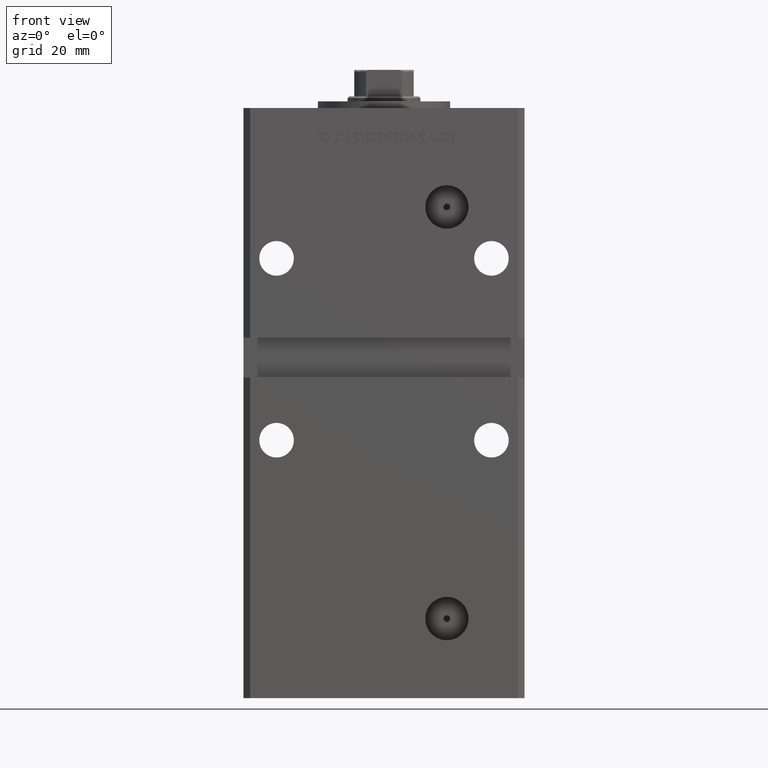
[diagram: clean part render]
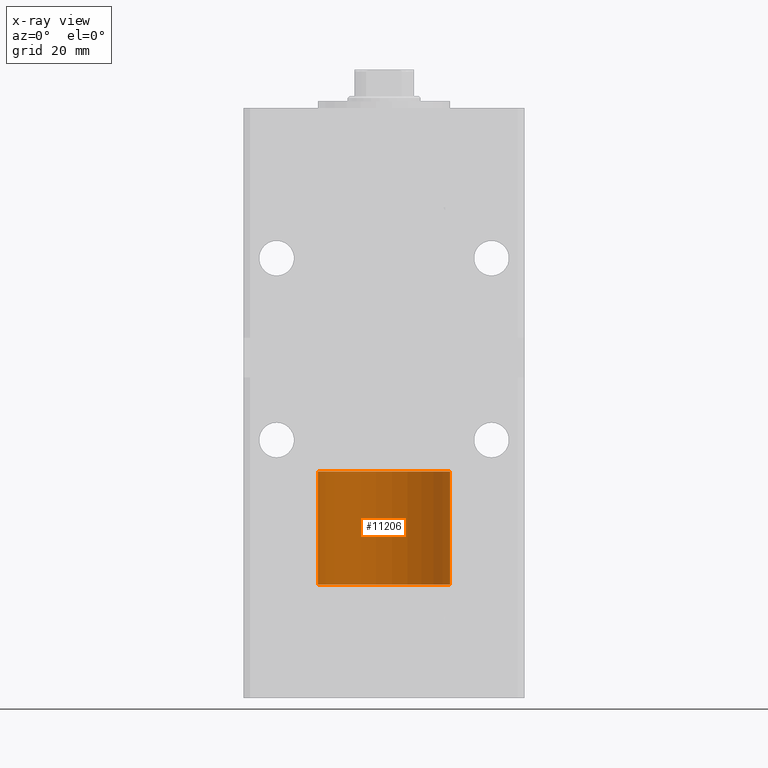
[diagram: x-ray — body ghosted, one internal face saturated and labeled with its STEP entity id]
A machine part, front view, then the same camera in x-ray: the body is ghosted and one INTERNAL B-rep face — a face not visible from any outside direction — is saturated and labeled: STEP entity #11206.
In plain terms, the highlighted cylindrical surface (partial cylindrical patch) has radius 20 mm, axis along (-0, -0, -1).
Its self-contained STEP definition (entity closure, byte-faithful):
#1515 = CIRCLE ( 'NONE', #14443, 20.00000000000000000 ) ;
#2093 = CARTESIAN_POINT ( 'NONE',  ( -20.00000000000000000, 0.000000000000000000, 34.25000000000000000 ) ) ;
#6530 = EDGE_CURVE ( 'NONE', #23949, #49530, #33173, .T. ) ;
#7867 = VECTOR ( 'NONE', #22512, 1000.000000000000000 ) ;
#8270 = DIRECTION ( 'NONE',  ( 1.000000000000000000, 0.000000000000000000, 0.000000000000000000 ) ) ;
#11134 = VECTOR ( 'NONE', #51748, 1000.000000000000000 ) ;
#11182 = ORIENTED_EDGE ( 'NONE', *, *, #26854, .F. ) ;
#11206 = ADVANCED_FACE ( 'NONE', ( #12987 ), #29379, .T. ) ;
#11772 = CARTESIAN_POINT ( 'NONE',  ( 0.000000000000000000, 0.000000000000000000, 34.25000000000000000 ) ) ;
#12987 = FACE_OUTER_BOUND ( 'NONE', #25532, .T. ) ;
#13244 = DIRECTION ( 'NONE',  ( -0.000000000000000000, -0.000000000000000000, -1.000000000000000000 ) ) ;
#14443 = AXIS2_PLACEMENT_3D ( 'NONE', #11772, #40812, #8270 ) ;
#15257 = AXIS2_PLACEMENT_3D ( 'NONE', #25348, #13244, #41761 ) ;
#15948 = EDGE_CURVE ( 'NONE', #25526, #23949, #35338, .T. ) ;
#16894 = DIRECTION ( 'NONE',  ( 0.000000000000000000, 0.000000000000000000, 1.000000000000000000 ) ) ;
#17191 = ORIENTED_EDGE ( 'NONE', *, *, #6530, .T. ) ;
#17384 = ORIENTED_EDGE ( 'NONE', *, *, #15948, .T. ) ;
#17415 = CARTESIAN_POINT ( 'NONE',  ( -20.00000000000000000, 0.000000000000000000, 34.25000000000000000 ) ) ;
#20548 = CARTESIAN_POINT ( 'NONE',  ( -20.00000000000000000, 0.000000000000000000, 0.000000000000000000 ) ) ;
#22345 = CARTESIAN_POINT ( 'NONE',  ( 20.00000000000000000, 2.449293598294706513E-15, 0.000000000000000000 ) ) ;
#22512 = DIRECTION ( 'NONE',  ( -0.000000000000000000, -0.000000000000000000, -1.000000000000000000 ) ) ;
#23949 = VERTEX_POINT ( 'NONE', #22345 ) ;
#25348 = CARTESIAN_POINT ( 'NONE',  ( 0.000000000000000000, 0.000000000000000000, 34.25000000000000000 ) ) ;
#25526 = VERTEX_POINT ( 'NONE', #41431 ) ;
#25532 = EDGE_LOOP ( 'NONE', ( #11182, #17384, #17191, #41526 ) ) ;
#26700 = VERTEX_POINT ( 'NONE', #2093 ) ;
#26854 = EDGE_CURVE ( 'NONE', #25526, #26700, #1515, .T. ) ;
#29379 = CYLINDRICAL_SURFACE ( 'NONE', #15257, 20.00000000000000000 ) ;
#33173 = CIRCLE ( 'NONE', #47766, 20.00000000000000000 ) ;
#35338 = LINE ( 'NONE', #39907, #11134 ) ;
#37200 = EDGE_CURVE ( 'NONE', #26700, #49530, #47239, .T. ) ;
#37600 = DIRECTION ( 'NONE',  ( 1.000000000000000000, 0.000000000000000000, 0.000000000000000000 ) ) ;
#39907 = CARTESIAN_POINT ( 'NONE',  ( 20.00000000000000000, 2.449293598294706513E-15, 34.25000000000000000 ) ) ;
#40812 = DIRECTION ( 'NONE',  ( 0.000000000000000000, 0.000000000000000000, 1.000000000000000000 ) ) ;
#41431 = CARTESIAN_POINT ( 'NONE',  ( 20.00000000000000000, 2.449293598294706513E-15, 34.25000000000000000 ) ) ;
#41526 = ORIENTED_EDGE ( 'NONE', *, *, #37200, .F. ) ;
#41761 = DIRECTION ( 'NONE',  ( -1.000000000000000000, 0.000000000000000000, 0.000000000000000000 ) ) ;
#47239 = LINE ( 'NONE', #17415, #7867 ) ;
#47766 = AXIS2_PLACEMENT_3D ( 'NONE', #49437, #16894, #37600 ) ;
#49437 = CARTESIAN_POINT ( 'NONE',  ( 0.000000000000000000, 0.000000000000000000, 0.000000000000000000 ) ) ;
#49530 = VERTEX_POINT ( 'NONE', #20548 ) ;
#51748 = DIRECTION ( 'NONE',  ( -0.000000000000000000, -0.000000000000000000, -1.000000000000000000 ) ) ;